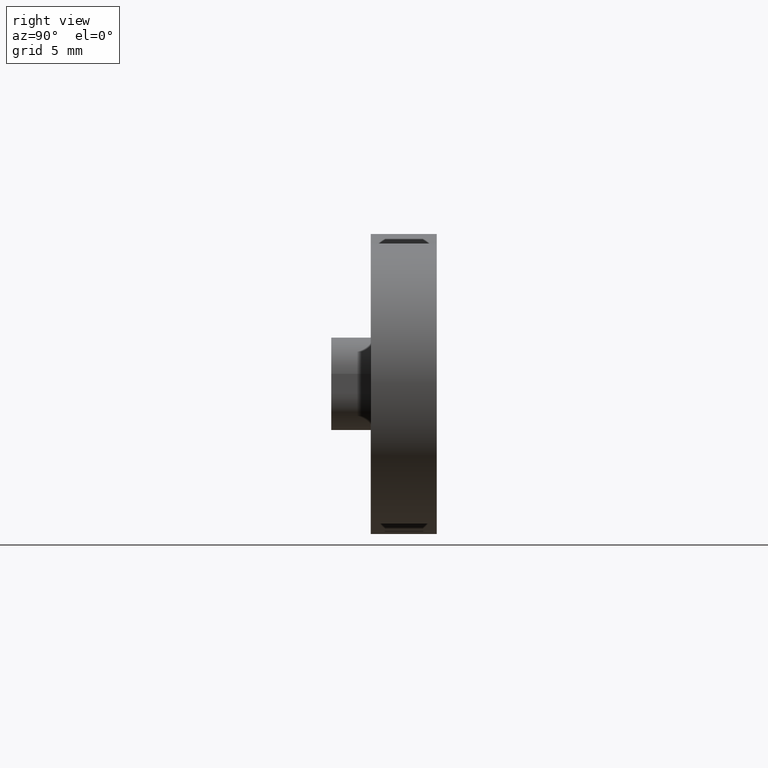
[diagram: clean part render]
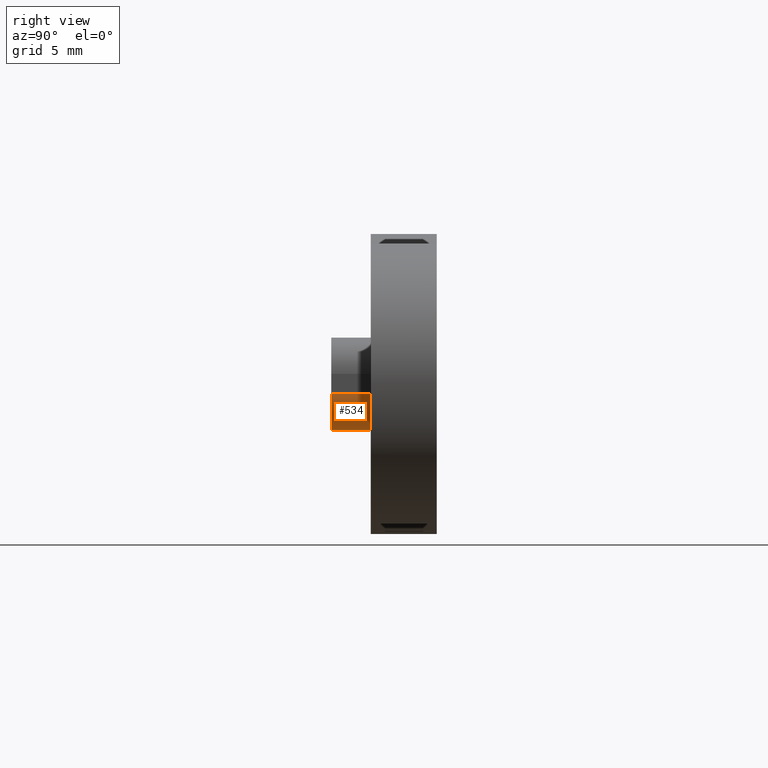
[diagram: same view with one face highlighted and labeled with its STEP entity id]
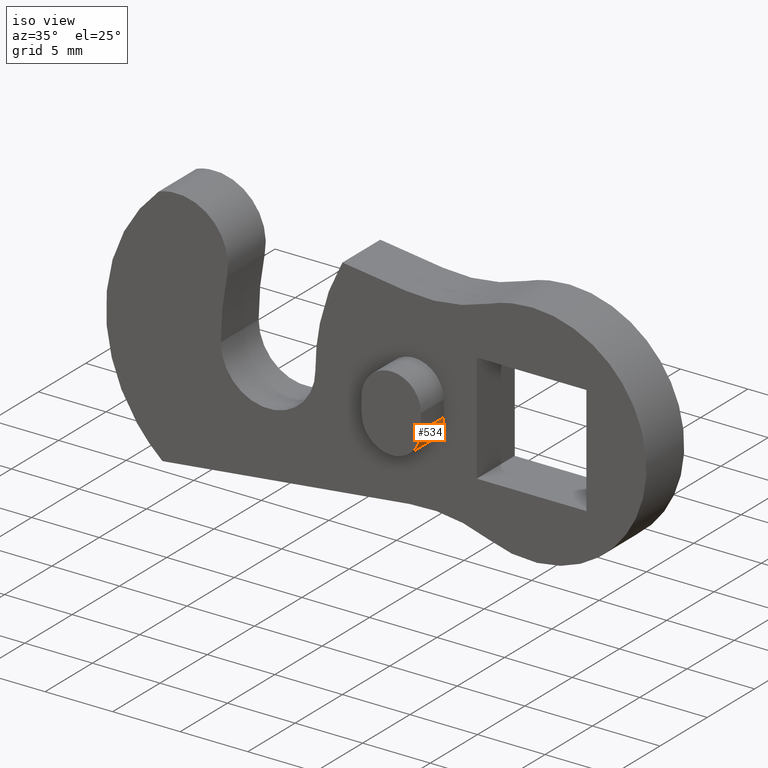
[diagram: same view with one face highlighted and labeled with its STEP entity id]
A machine part, right view. The second image highlights one B-rep face of the part: STEP entity #534.
A second angle (iso view) of the same face is appended — the face is thin or edge-on in the first view.
In plain terms, the highlighted face is a freeform B-spline surface patch.
Its self-contained STEP definition (entity closure, byte-faithful):
#433=CARTESIAN_POINT('',(-6.500000308733420,-2.400000113993885,-0.600000028498486));
#434=VERTEX_POINT('',#433);
#459=CARTESIAN_POINT('',(-10.900000517722219,-2.400000113993885,-0.600000028498485));
#460=VERTEX_POINT('',#459);
#466=CARTESIAN_POINT('',(-10.900000517722210,-2.400000113993885,-0.600000028498485));
#467=CARTESIAN_POINT('',(-10.900000517722205,-2.400000113993885,-2.800000132992881));
#468=CARTESIAN_POINT('',(-8.700000413227810,-2.400000113993885,-2.800000132992880));
#469=CARTESIAN_POINT('',(-6.500000308733416,-2.400000113993885,-2.800000132992881));
#470=CARTESIAN_POINT('',(-6.500000308733416,-2.400000113993885,-0.600000028498485));
#478=(BOUNDED_CURVE()B_SPLINE_CURVE(2,(#466,#467,#468,#469,#470),.UNSPECIFIED.,.F.,.U.)B_SPLINE_CURVE_WITH_KNOTS((3,2,3),(0.0,0.500000000000000,1.0),.UNSPECIFIED.)CURVE()GEOMETRIC_REPRESENTATION_ITEM()RATIONAL_B_SPLINE_CURVE((1.0,0.707106781186548,1.0,0.707106781186548,1.0))REPRESENTATION_ITEM(''));
#479=EDGE_CURVE('',#460,#434,#478,.T.);
#484=CARTESIAN_POINT('',(-10.899246632632620,-2.460000116843732,-0.542410739485817));
#485=CARTESIAN_POINT('',(-10.899246632632620,0.061500002921093,-0.542410739485817));
#486=CARTESIAN_POINT('',(-10.959405188766226,-2.460000116843732,-2.839773311761538));
#487=CARTESIAN_POINT('',(-10.959405188766226,0.061500002921093,-2.839773311761538));
#488=CARTESIAN_POINT('',(-8.661605117242115,-2.460000116843732,-2.799665062321025));
#489=CARTESIAN_POINT('',(-8.661605117242115,0.061500002921093,-2.799665062321025));
#490=CARTESIAN_POINT('',(-6.363805045718005,-2.460000116843732,-2.759556812880516));
#491=CARTESIAN_POINT('',(-6.363805045718005,0.061500002921093,-2.759556812880516));
#492=CARTESIAN_POINT('',(-6.504103752400213,-2.460000116843732,-0.465693235142578));
#493=CARTESIAN_POINT('',(-6.504103752400213,0.061500002921093,-0.465693235142578));
#501=(BOUNDED_SURFACE()B_SPLINE_SURFACE(1,2,((#484,#486,#488,#490,#492),(#485,#487,#489,#491,#493)),.UNSPECIFIED.,.F.,.F.,.U.)B_SPLINE_SURFACE_WITH_KNOTS((2,2),(3,2,3),(0.0,2.521500119764826),(0.0,3.758057406845123,7.516114813690246),.UNSPECIFIED.)GEOMETRIC_REPRESENTATION_ITEM()RATIONAL_B_SPLINE_SURFACE(((1.0,0.691513055782269,1.0,0.691513055782269,1.0),(1.0,0.691513055782269,1.0,0.691513055782269,1.0)))REPRESENTATION_ITEM('')SURFACE());
#502=CARTESIAN_POINT('',(-10.900000517722200,0.0,-0.600000028498485));
#503=VERTEX_POINT('',#502);
#504=CARTESIAN_POINT('',(-6.500000308733420,0.0,-0.600000028498486));
#505=VERTEX_POINT('',#504);
#506=CARTESIAN_POINT('',(-10.900000517722210,0.0,-0.600000028498485));
#507=CARTESIAN_POINT('',(-10.900000517722205,0.0,-2.800000132992881));
#508=CARTESIAN_POINT('',(-8.700000413227810,0.0,-2.800000132992880));
#509=CARTESIAN_POINT('',(-6.500000308733416,0.0,-2.800000132992881));
#510=CARTESIAN_POINT('',(-6.500000308733416,0.0,-0.600000028498485));
#518=(BOUNDED_CURVE()B_SPLINE_CURVE(2,(#506,#507,#508,#509,#510),.UNSPECIFIED.,.F.,.U.)B_SPLINE_CURVE_WITH_KNOTS((3,2,3),(0.0,0.500000000000000,1.0),.UNSPECIFIED.)CURVE()GEOMETRIC_REPRESENTATION_ITEM()RATIONAL_B_SPLINE_CURVE((1.0,0.707106781186548,1.0,0.707106781186548,1.0))REPRESENTATION_ITEM(''));
#519=EDGE_CURVE('',#503,#505,#518,.T.);
#520=ORIENTED_EDGE('',*,*,#519,.T.);
#521=CARTESIAN_POINT('',(-6.500000308733420,-2.400000113993885,-0.600000028498486));
#522=CARTESIAN_POINT('',(-6.500000308733420,0.0,-0.600000028498486));
#523=QUASI_UNIFORM_CURVE('',1,(#521,#522),.UNSPECIFIED.,.F.,.U.);
#524=EDGE_CURVE('',#434,#505,#523,.T.);
#525=ORIENTED_EDGE('',*,*,#524,.F.);
#526=ORIENTED_EDGE('',*,*,#479,.F.);
#527=CARTESIAN_POINT('',(-10.900000517722219,-2.400000113993885,-0.600000028498485));
#528=CARTESIAN_POINT('',(-10.900000517722200,0.0,-0.600000028498485));
#529=QUASI_UNIFORM_CURVE('',1,(#527,#528),.UNSPECIFIED.,.F.,.U.);
#530=EDGE_CURVE('',#460,#503,#529,.T.);
#531=ORIENTED_EDGE('',*,*,#530,.T.);
#532=EDGE_LOOP('',(#520,#525,#526,#531));
#533=FACE_OUTER_BOUND('',#532,.T.);
#534=ADVANCED_FACE('',(#533),#501,.T.);